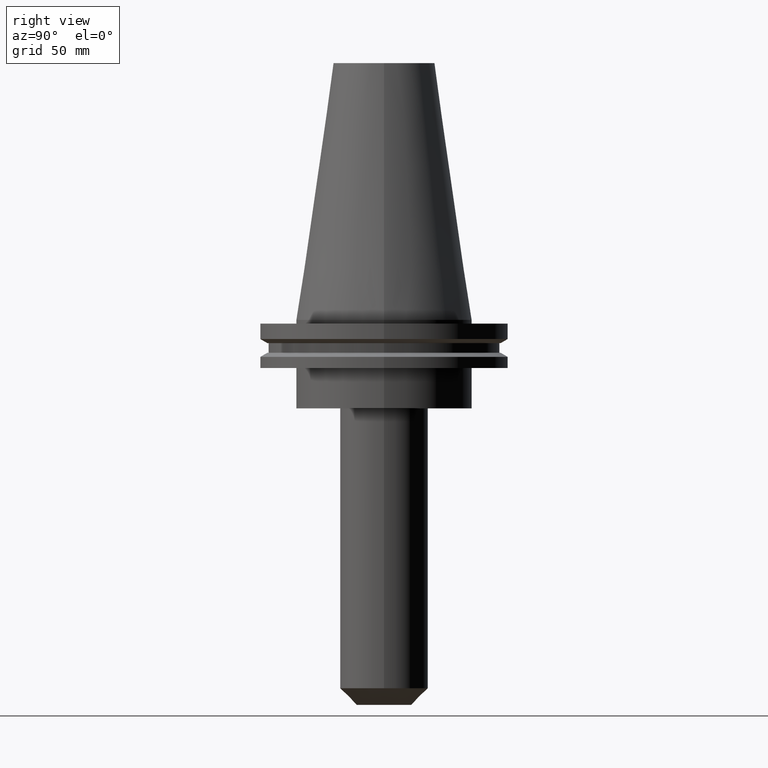
[diagram: clean part render]
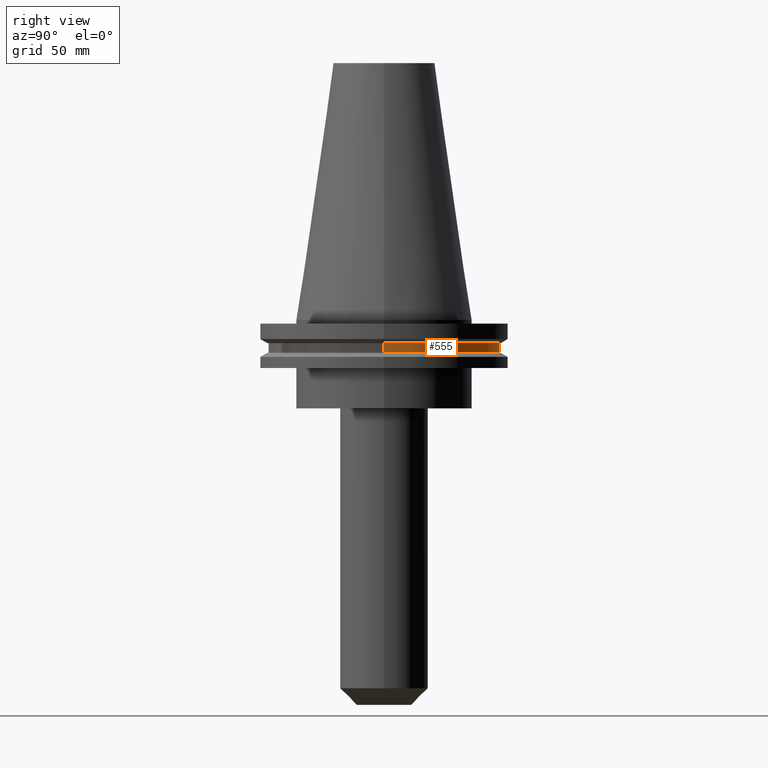
[diagram: same view with one face highlighted and labeled with its STEP entity id]
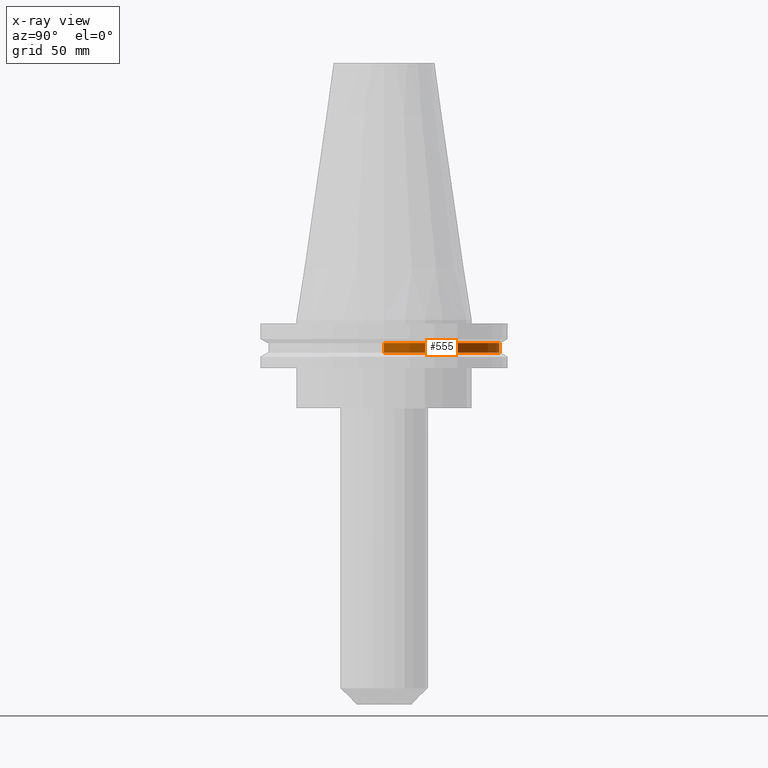
[diagram: x-ray of the same camera — body ghosted, the highlighted face saturated]
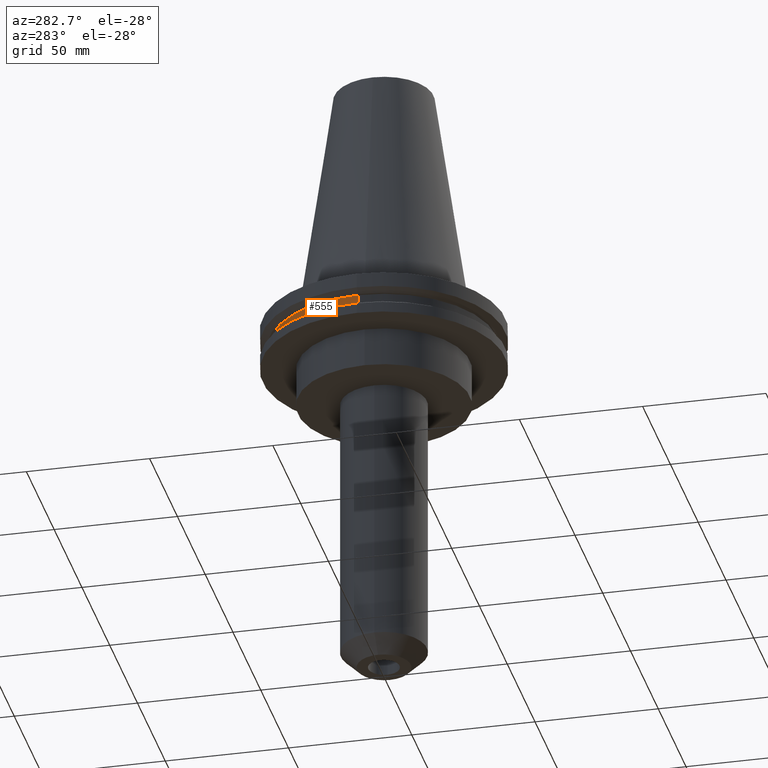
[diagram: same view with one face highlighted and labeled with its STEP entity id]
A machine part, right view. The second image highlights one B-rep face of the part: STEP entity #555.
The next image is the same camera in x-ray: the body ghosted, the highlighted face saturated — about 0% of this face is hidden behind the body in this view.
A second angle (auxiliary view) of the same face is appended — the face is thin or edge-on in the first view.
In plain terms, the highlighted cylindrical surface (partial cylindrical patch) has radius 45.645 mm, axis along (-0, -0, 1).
Its self-contained STEP definition (entity closure, byte-faithful):
#39 = CARTESIAN_POINT ( 'NONE',  ( -45.64500000000000313, 5.589900314708094957E-15, -9.204999999999991189 ) ) ;
#56 = VERTEX_POINT ( 'NONE', #499 ) ;
#61 = CARTESIAN_POINT ( 'NONE',  ( -45.64500000000000313, 5.589900314708094957E-15, -13.05499999999999794 ) ) ;
#64 = ORIENTED_EDGE ( 'NONE', *, *, #369, .F. ) ;
#97 = DIRECTION ( 'NONE',  ( 1.000000000000000000, 0.000000000000000000, 0.000000000000000000 ) ) ;
#104 = CYLINDRICAL_SURFACE ( 'NONE', #839, 45.64500000000000313 ) ;
#112 = CARTESIAN_POINT ( 'NONE',  ( 45.64500000000000313, 0.000000000000000000, -13.05499999999999794 ) ) ;
#147 = ORIENTED_EDGE ( 'NONE', *, *, #234, .F. ) ;
#171 = DIRECTION ( 'NONE',  ( 1.000000000000000000, 0.000000000000000000, 0.000000000000000000 ) ) ;
#187 = DIRECTION ( 'NONE',  ( -0.000000000000000000, -0.000000000000000000, 1.000000000000000000 ) ) ;
#194 = CARTESIAN_POINT ( 'NONE',  ( 45.64500000000000313, 0.000000000000000000, 101.5999999999999943 ) ) ;
#195 = VERTEX_POINT ( 'NONE', #39 ) ;
#206 = VERTEX_POINT ( 'NONE', #112 ) ;
#234 = EDGE_CURVE ( 'NONE', #56, #195, #387, .T. ) ;
#258 = ORIENTED_EDGE ( 'NONE', *, *, #459, .T. ) ;
#303 = DIRECTION ( 'NONE',  ( -0.000000000000000000, -0.000000000000000000, 1.000000000000000000 ) ) ;
#364 = EDGE_CURVE ( 'NONE', #783, #195, #589, .T. ) ;
#366 = FACE_OUTER_BOUND ( 'NONE', #809, .T. ) ;
#369 = EDGE_CURVE ( 'NONE', #206, #56, #529, .T. ) ;
#374 = AXIS2_PLACEMENT_3D ( 'NONE', #734, #668, #97 ) ;
#387 = CIRCLE ( 'NONE', #500, 45.64500000000000313 ) ;
#398 = VECTOR ( 'NONE', #853, 1000.000000000000000 ) ;
#403 = DIRECTION ( 'NONE',  ( 1.000000000000000000, 0.000000000000000000, 0.000000000000000000 ) ) ;
#457 = CARTESIAN_POINT ( 'NONE',  ( 0.000000000000000000, 0.000000000000000000, -9.204999999999991189 ) ) ;
#459 = EDGE_CURVE ( 'NONE', #206, #783, #676, .T. ) ;
#460 = DIRECTION ( 'NONE',  ( -0.000000000000000000, -0.000000000000000000, 1.000000000000000000 ) ) ;
#487 = ORIENTED_EDGE ( 'NONE', *, *, #364, .T. ) ;
#499 = CARTESIAN_POINT ( 'NONE',  ( 45.64500000000000313, 0.000000000000000000, -9.204999999999991189 ) ) ;
#500 = AXIS2_PLACEMENT_3D ( 'NONE', #457, #187, #403 ) ;
#529 = LINE ( 'NONE', #194, #658 ) ;
#555 = ADVANCED_FACE ( 'NONE', ( #366 ), #104, .T. ) ;
#569 = CARTESIAN_POINT ( 'NONE',  ( 0.000000000000000000, 0.000000000000000000, 101.5999999999999943 ) ) ;
#585 = CARTESIAN_POINT ( 'NONE',  ( -45.64500000000000313, 5.589900314708094957E-15, 101.5999999999999943 ) ) ;
#589 = LINE ( 'NONE', #585, #398 ) ;
#658 = VECTOR ( 'NONE', #460, 1000.000000000000000 ) ;
#668 = DIRECTION ( 'NONE',  ( -0.000000000000000000, -0.000000000000000000, 1.000000000000000000 ) ) ;
#676 = CIRCLE ( 'NONE', #374, 45.64500000000000313 ) ;
#734 = CARTESIAN_POINT ( 'NONE',  ( 0.000000000000000000, 0.000000000000000000, -13.05499999999999794 ) ) ;
#783 = VERTEX_POINT ( 'NONE', #61 ) ;
#809 = EDGE_LOOP ( 'NONE', ( #258, #487, #147, #64 ) ) ;
#839 = AXIS2_PLACEMENT_3D ( 'NONE', #569, #303, #171 ) ;
#853 = DIRECTION ( 'NONE',  ( -0.000000000000000000, -0.000000000000000000, 1.000000000000000000 ) ) ;